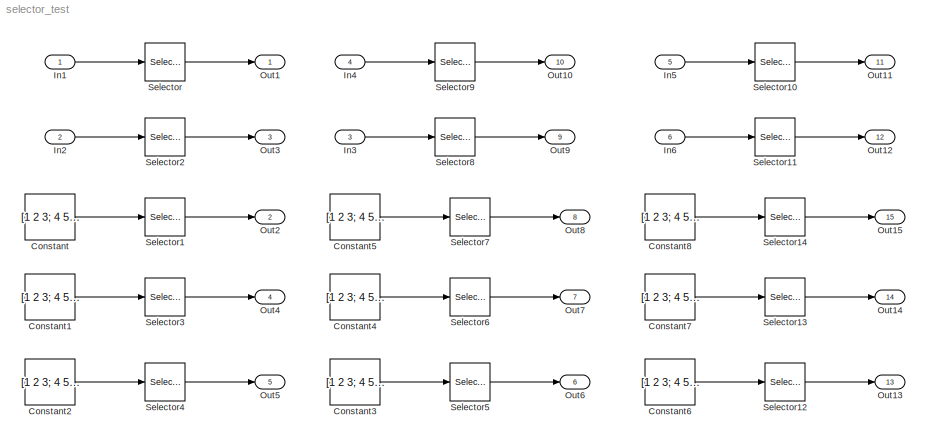
MODEL selector_test
KIND model
BLOCK [Constant] Constant
  SID = 11
  Value = [1 2 3; 4 5 6]
BLOCK [Constant] Constant1
  SID = 19
  Value = [1 2 3; 4 5 6]
BLOCK [Constant] Constant2
  SID = 22
  Value = [1 2 3; 4 5 6]
BLOCK [Constant] Constant3
  SID = 25
  Value = [1 2 3; 4 5 6]
BLOCK [Constant] Constant4
  SID = 28
  Value = [1 2 3; 4 5 6]
BLOCK [Constant] Constant5
  SID = 31
  Value = [1 2 3; 4 5 6]
BLOCK [Constant] Constant6
  SID = 61
  Value = [1 2 3; 4 5 6]
BLOCK [Constant] Constant7
  SID = 62
  Value = [1 2 3; 4 5 6]
BLOCK [Constant] Constant8
  SID = 63
  Value = [1 2 3; 4 5 6]
BLOCK [Inport] In1
  IconDisplay = Port number
  PortDimensions = 3
  SID = 1
BLOCK [Inport] In2
  IconDisplay = Port number
  Port = 2
  PortDimensions = 3
  SID = 12
BLOCK [Inport] In3
  IconDisplay = Port number
  Port = 3
  PortDimensions = 3
  SID = 34
BLOCK [Inport] In4
  IconDisplay = Port number
  Port = 4
  PortDimensions = 3
  SID = 37
BLOCK [Inport] In5
  IconDisplay = Port number
  Port = 5
  PortDimensions = 3
  SID = 55
BLOCK [Inport] In6
  IconDisplay = Port number
  Port = 6
  PortDimensions = 3
  SID = 58
BLOCK [Outport] Out1
  IconDisplay = Port number
  SID = 5
BLOCK [Outport] Out10
  IconDisplay = Port number
  Port = 10
  SID = 39
BLOCK [Outport] Out11
  IconDisplay = Port number
  Port = 11
  SID = 57
BLOCK [Outport] Out12
  IconDisplay = Port number
  Port = 12
  SID = 60
BLOCK [Outport] Out13
  IconDisplay = Port number
  Port = 13
  SID = 67
BLOCK [Outport] Out14
  IconDisplay = Port number
  Port = 14
  SID = 68
BLOCK [Outport] Out15
  IconDisplay = Port number
  Port = 15
  SID = 69
BLOCK [Outport] Out2
  IconDisplay = Port number
  Port = 2
  SID = 6
BLOCK [Outport] Out3
  IconDisplay = Port number
  Port = 3
  SID = 14
BLOCK [Outport] Out4
  IconDisplay = Port number
  Port = 4
  SID = 21
BLOCK [Outport] Out5
  IconDisplay = Port number
  Port = 5
  SID = 24
BLOCK [Outport] Out6
  IconDisplay = Port number
  Port = 6
  SID = 27
BLOCK [Outport] Out7
  IconDisplay = Port number
  Port = 7
  SID = 30
BLOCK [Outport] Out8
  IconDisplay = Port number
  Port = 8
  SID = 33
BLOCK [Outport] Out9
  IconDisplay = Port number
  Port = 9
  SID = 36
BLOCK [Selector] Selector
  IndexMode = Zero-based
  IndexOptions = Index vector (dialog)
  Indices = [1 0 0]
  InputPortWidth = 3
  OutputSizes = 1
  Ports = [1, 1]
  SID = 9
BLOCK [Selector] Selector1
  IndexOptions = Index vector (dialog),Index vector (dialog)
  Indices = [2 1],1
  InputPortWidth = 3
  NumberOfDimensions = 2
  OutputSizes = 1,2
  Ports = [1, 1]
  SID = 10
BLOCK [Selector] Selector10
  IndexOptions = Starting index (dialog)
  Indices = 1
  InputPortWidth = 3
  OutputSizes = 1
  Ports = [1, 1]
  SID = 56
BLOCK [Selector] Selector11
  IndexOptions = Starting index (dialog)
  Indices = 1
  InputPortWidth = 3
  OutputSizes = 2
  Ports = [1, 1]
  SID = 59
BLOCK [Selector] Selector12
  IndexOptions = Starting index (dialog),Select all
  Indices = 1,1
  InputPortWidth = 3
  NumberOfDimensions = 2
  OutputSizes = 1,2
  Ports = [1, 1]
  SID = 64
BLOCK [Selector] Selector13
  IndexOptions = Index vector (dialog),Starting index (dialog)
  Indices = [2 1],1
  InputPortWidth = 3
  NumberOfDimensions = 2
  OutputSizes = 1,2
  Ports = [1, 1]
  SID = 65
BLOCK [Selector] Selector14
  IndexMode = Zero-based
  IndexOptions = Index vector (dialog),Starting index (dialog)
  Indices = [1 0],0
  InputPortWidth = 3
  NumberOfDimensions = 2
  OutputSizes = 1,2
  Ports = [1, 1]
  SID = 66
BLOCK [Selector] Selector2
  IndexOptions = Index vector (dialog)
  Indices = 2
  InputPortWidth = 3
  OutputSizes = 1
  Ports = [1, 1]
  SID = 13
BLOCK [Selector] Selector3
  IndexMode = Zero-based
  IndexOptions = Index vector (dialog),Select all
  Indices = [1 0],1
  InputPortWidth = 3
  NumberOfDimensions = 2
  OutputSizes = 1,2
  Ports = [1, 1]
  SID = 20
BLOCK [Selector] Selector4
  IndexMode = Zero-based
  IndexOptions = Select all,Select all
  Indices = 0,1
  InputPortWidth = 3
  NumberOfDimensions = 2
  OutputSizes = 1,2
  Ports = [1, 1]
  SID = 23
BLOCK [Selector] Selector5
  IndexOptions = Select all,Select all
  Indices = 0,1
  InputPortWidth = 3
  NumberOfDimensions = 2
  OutputSizes = 1,2
  Ports = [1, 1]
  SID = 26
BLOCK [Selector] Selector6
  IndexOptions = Index vector (dialog),Select all
  Indices = [2 1],1
  InputPortWidth = 3
  NumberOfDimensions = 2
  OutputSizes = 1,2
  Ports = [1, 1]
  SID = 29
BLOCK [Selector] Selector7
  IndexMode = Zero-based
  IndexOptions = Index vector (dialog),Index vector (dialog)
  Indices = [1 0],0
  InputPortWidth = 3
  NumberOfDimensions = 2
  OutputSizes = 1,2
  Ports = [1, 1]
  SID = 32
BLOCK [Selector] Selector8
  IndexMode = Zero-based
  IndexOptions = Index vector (dialog)
  Indices = 1
  InputPortWidth = 3
  OutputSizes = 1
  Ports = [1, 1]
  SID = 35
BLOCK [Selector] Selector9
  IndexOptions = Index vector (dialog)
  Indices = [2 1 1]
  InputPortWidth = 3
  OutputSizes = 1
  Ports = [1, 1]
  SID = 38
LINE Constant1:1 -> Selector3:1
LINE Constant2:1 -> Selector4:1
LINE Constant3:1 -> Selector5:1
LINE Constant4:1 -> Selector6:1
LINE Constant5:1 -> Selector7:1
LINE Constant6:1 -> Selector12:1
LINE Constant7:1 -> Selector13:1
LINE Constant8:1 -> Selector14:1
LINE Constant:1 -> Selector1:1
LINE In1:1 -> Selector:1
LINE In2:1 -> Selector2:1
LINE In3:1 -> Selector8:1
LINE In4:1 -> Selector9:1
LINE In5:1 -> Selector10:1
LINE In6:1 -> Selector11:1
LINE Selector10:1 -> Out11:1
LINE Selector11:1 -> Out12:1
LINE Selector12:1 -> Out13:1
LINE Selector13:1 -> Out14:1
LINE Selector14:1 -> Out15:1
LINE Selector1:1 -> Out2:1
LINE Selector2:1 -> Out3:1
LINE Selector3:1 -> Out4:1
LINE Selector4:1 -> Out5:1
LINE Selector5:1 -> Out6:1
LINE Selector6:1 -> Out7:1
LINE Selector7:1 -> Out8:1
LINE Selector8:1 -> Out9:1
LINE Selector9:1 -> Out10:1
LINE Selector:1 -> Out1:1
